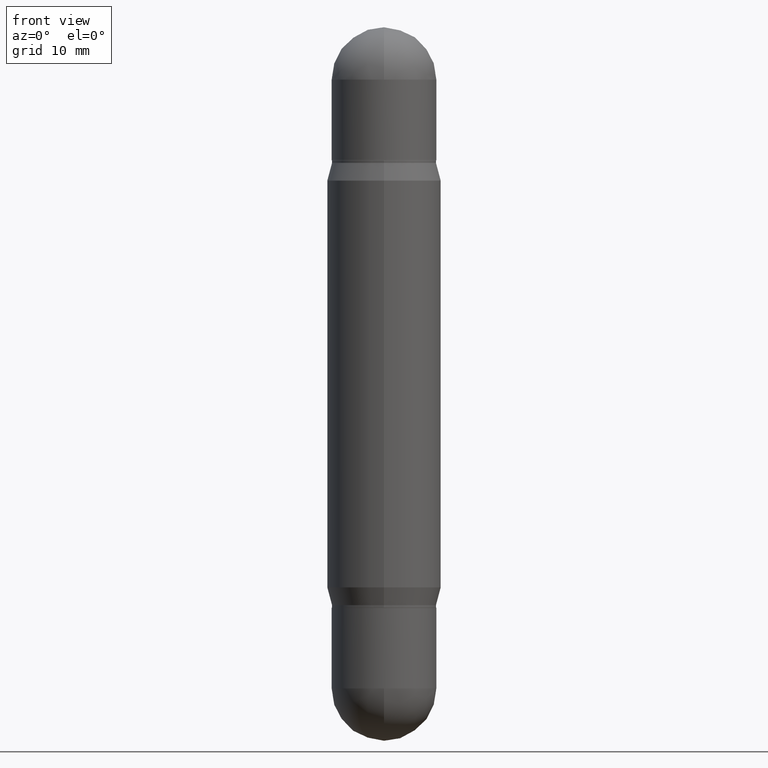
[diagram: clean part render]
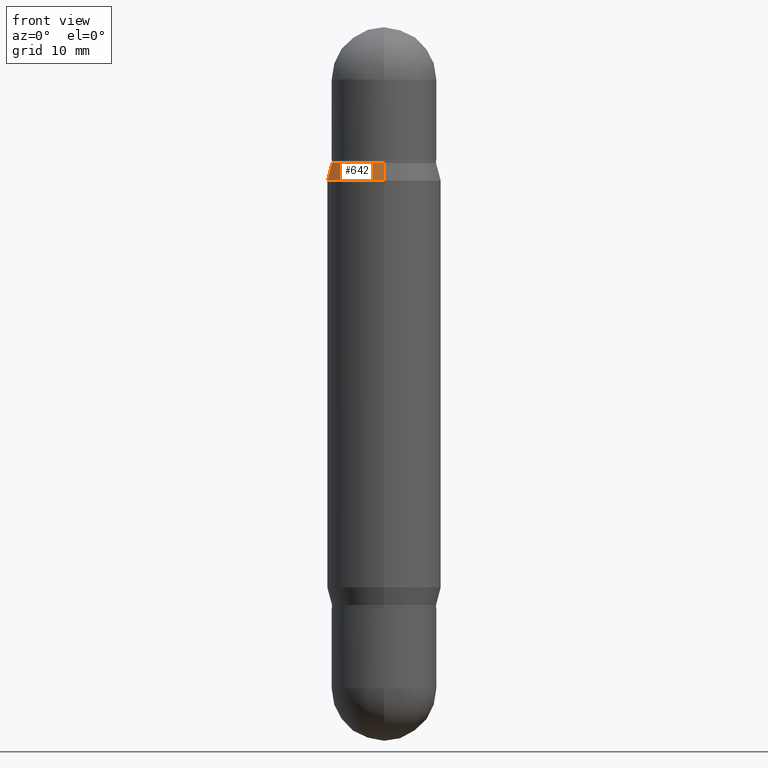
[diagram: same view with one face highlighted and labeled with its STEP entity id]
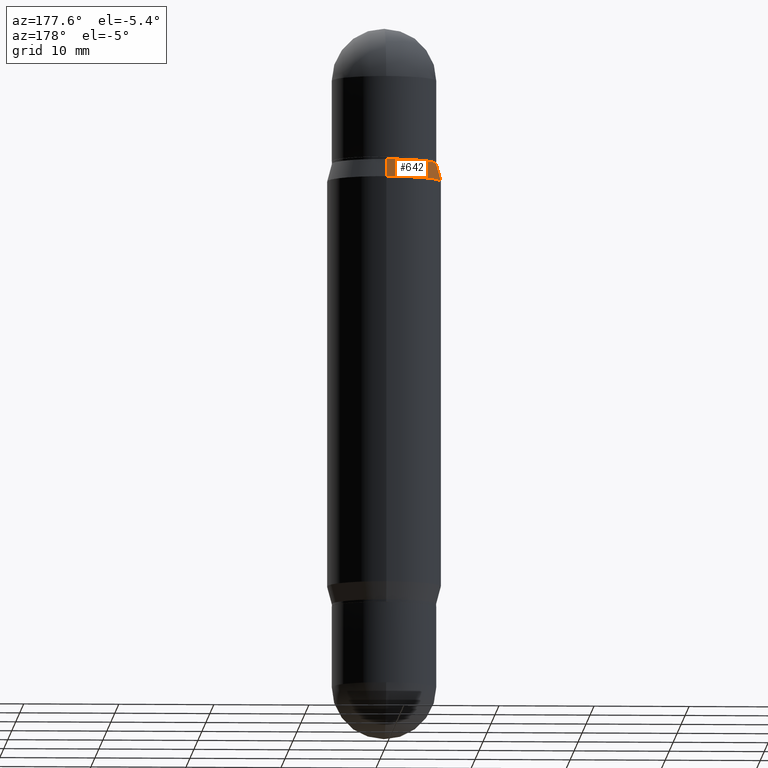
[diagram: same view with one face highlighted and labeled with its STEP entity id]
A machine part, front view. The second image highlights one B-rep face of the part: STEP entity #642.
A second angle (auxiliary view) of the same face is appended — the face is thin or edge-on in the first view.
In plain terms, the highlighted conical surface has half-angle 15 deg.
Its self-contained STEP definition (entity closure, byte-faithful):
#4 = DIRECTION ( 'NONE',  ( -2.443392441147330272E-29, -3.476640994064330744E-15, -1.000000000000000000 ) ) ;
#6 = CONICAL_SURFACE ( 'NONE', #965, 0.2165500000000000203, 0.2617993877991515173 ) ;
#54 = ORIENTED_EDGE ( 'NONE', *, *, #724, .F. ) ;
#105 = CARTESIAN_POINT ( 'NONE',  ( 1.620449627073692271E-15, 0.2361999999999977728, -0.6345347983687291693 ) ) ;
#110 = CARTESIAN_POINT ( 'NONE',  ( 5.843617362247953092E-29, -1.977391246309834649E-15, -0.5612000000000005873 ) ) ;
#121 = EDGE_CURVE ( 'NONE', #568, #1055, #475, .T. ) ;
#144 = CARTESIAN_POINT ( 'NONE',  ( -1.512160567852902447E-15, -0.2165500000000019909, -0.5611999999999998101 ) ) ;
#172 = CARTESIAN_POINT ( 'NONE',  ( 5.843617362247953092E-29, -1.977391246309834649E-15, -0.5612000000000005873 ) ) ;
#183 = DIRECTION ( 'NONE',  ( -6.982962677686265133E-15, -1.000000000000000000, 3.469213568495369673E-15 ) ) ;
#184 = LINE ( 'NONE', #370, #857 ) ;
#205 = DIRECTION ( 'NONE',  ( -1.807323732225338422E-15, -0.2588190451025260685, -0.9659258262890667579 ) ) ;
#215 = DIRECTION ( 'NONE',  ( -6.982962677686265133E-15, -1.000000000000000000, 3.469213568495369673E-15 ) ) ;
#231 = EDGE_CURVE ( 'NONE', #401, #568, #184, .T. ) ;
#256 = EDGE_CURVE ( 'NONE', #860, #1055, #1077, .T. ) ;
#313 = CARTESIAN_POINT ( 'NONE',  ( -1.512160567852902447E-15, -0.2165500000000019909, -0.5611999999999998101 ) ) ;
#370 = CARTESIAN_POINT ( 'NONE',  ( 1.485640841417483516E-15, 0.2165499999999980218, -0.5612000000000013644 ) ) ;
#401 = VERTEX_POINT ( 'NONE', #476 ) ;
#448 = ORIENTED_EDGE ( 'NONE', *, *, #231, .T. ) ;
#475 = CIRCLE ( 'NONE', #619, 0.2361999999999999933 ) ;
#476 = CARTESIAN_POINT ( 'NONE',  ( 1.485640841417483714E-15, 0.2165499999999980218, -0.5612000000000013644 ) ) ;
#504 = ORIENTED_EDGE ( 'NONE', *, *, #256, .F. ) ;
#525 = DIRECTION ( 'NONE',  ( 2.443392441147330272E-29, 3.476640994064330744E-15, 1.000000000000000000 ) ) ;
#568 = VERTEX_POINT ( 'NONE', #105 ) ;
#619 = AXIS2_PLACEMENT_3D ( 'NONE', #628, #525, #714 ) ;
#628 = CARTESIAN_POINT ( 'NONE',  ( 5.664431670240739749E-29, -2.232350012609995288E-15, -0.6345347983687283921 ) ) ;
#642 = ADVANCED_FACE ( 'NONE', ( #1051 ), #6, .T. ) ;
#714 = DIRECTION ( 'NONE',  ( -6.982962677686265922E-15, -1.000000000000000000, 3.469747663417777397E-15 ) ) ;
#724 = EDGE_CURVE ( 'NONE', #401, #860, #785, .T. ) ;
#785 = CIRCLE ( 'NONE', #859, 0.2165500000000000203 ) ;
#827 = DIRECTION ( 'NONE',  ( 2.443392441147330272E-29, 3.476640994064330744E-15, 1.000000000000000000 ) ) ;
#857 = VECTOR ( 'NONE', #1062, 39.37007874015748143 ) ;
#859 = AXIS2_PLACEMENT_3D ( 'NONE', #110, #827, #215 ) ;
#860 = VERTEX_POINT ( 'NONE', #144 ) ;
#965 = AXIS2_PLACEMENT_3D ( 'NONE', #172, #4, #183 ) ;
#1036 = VECTOR ( 'NONE', #205, 39.37007874015748854 ) ;
#1050 = CARTESIAN_POINT ( 'NONE',  ( -1.649375784469439136E-15, -0.2362000000000022137, -0.6345347983687275040 ) ) ;
#1051 = FACE_OUTER_BOUND ( 'NONE', #1078, .T. ) ;
#1055 = VERTEX_POINT ( 'NONE', #1050 ) ;
#1062 = DIRECTION ( 'NONE',  ( 1.775627540710973583E-15, 0.2588190451025194627, -0.9659258262890685343 ) ) ;
#1077 = LINE ( 'NONE', #313, #1036 ) ;
#1078 = EDGE_LOOP ( 'NONE', ( #54, #448, #1083, #504 ) ) ;
#1083 = ORIENTED_EDGE ( 'NONE', *, *, #121, .T. ) ;